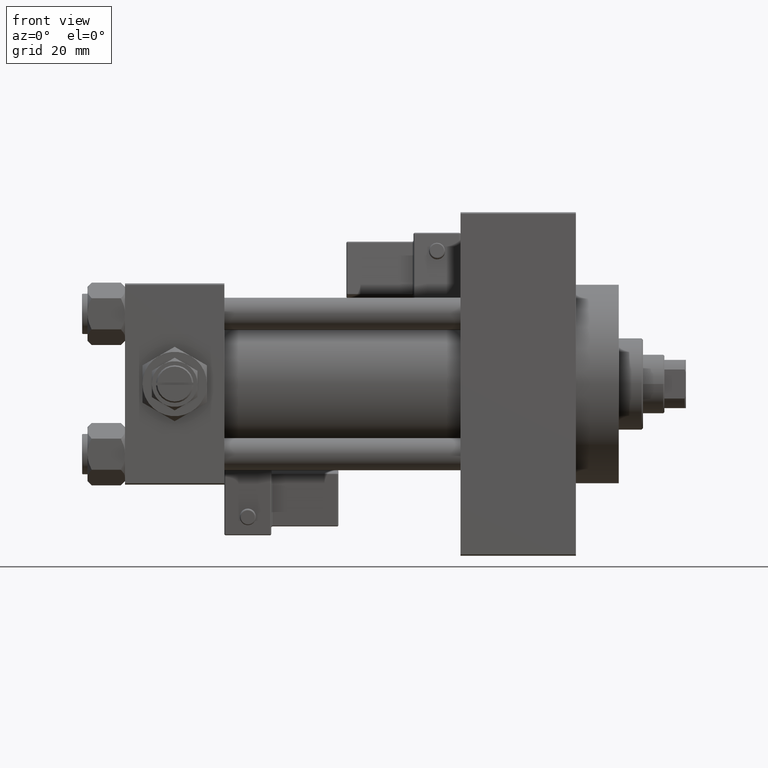
[diagram: clean part render]
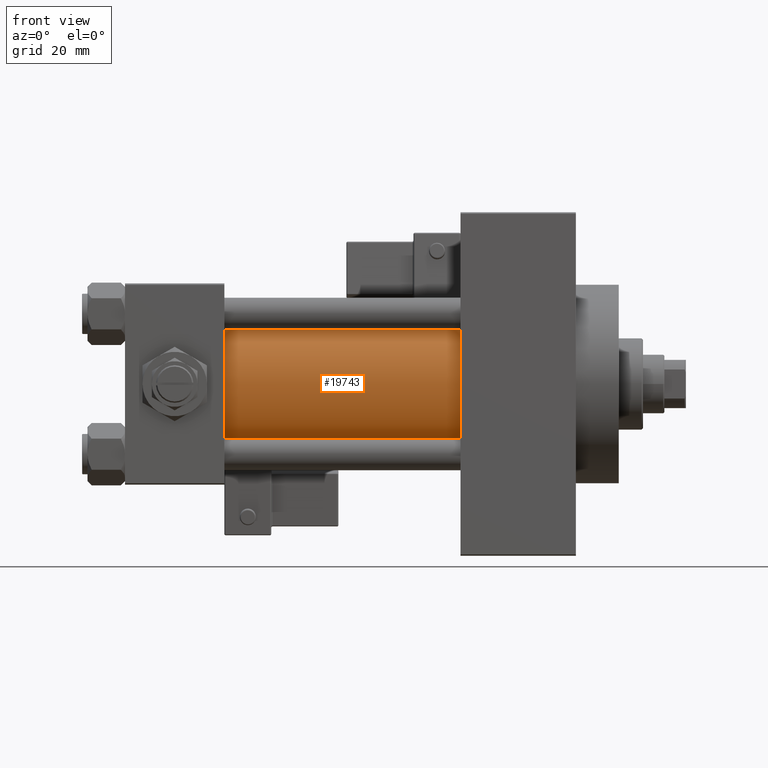
[diagram: same view with one face highlighted and labeled with its STEP entity id]
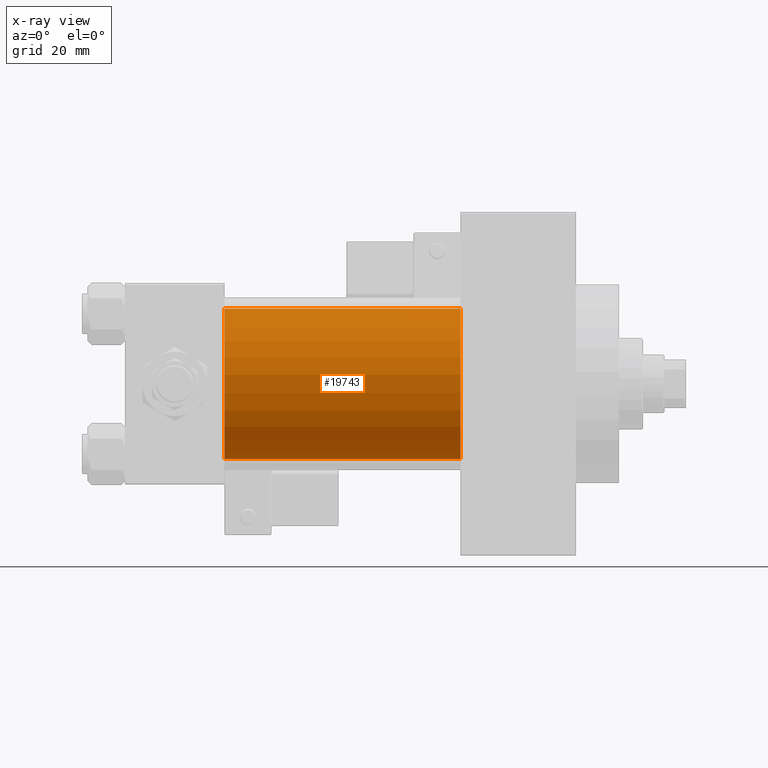
[diagram: x-ray of the same camera — body ghosted, the highlighted face saturated]
A machine part, front view. The second image highlights one B-rep face of the part: STEP entity #19743.
The next image is the same camera in x-ray: the body ghosted, the highlighted face saturated — about 1% of this face is hidden behind the body in this view.
In plain terms, the highlighted cylindrical surface (partial cylindrical patch) has radius 28 mm, axis along (-1, -0, -0).
Its self-contained STEP definition (entity closure, byte-faithful):
#2917 = VERTEX_POINT ( 'NONE', #12791 ) ;
#3509 = EDGE_CURVE ( 'NONE', #2917, #13941, #39879, .T. ) ;
#5780 = DIRECTION ( 'NONE',  ( 0.000000000000000000, 0.000000000000000000, -1.000000000000000000 ) ) ;
#5821 = CARTESIAN_POINT ( 'NONE',  ( 125.0000000000000000, -2.602085213965210642E-15, 0.000000000000000000 ) ) ;
#7447 = CARTESIAN_POINT ( 'NONE',  ( 125.0000000000000000, -2.602085213965210642E-15, 28.00000000000000000 ) ) ;
#8445 = AXIS2_PLACEMENT_3D ( 'NONE', #40764, #29681, #5780 ) ;
#9033 = CARTESIAN_POINT ( 'NONE',  ( 37.00000000000000711, -2.602085213965210642E-15, 28.00000000000000000 ) ) ;
#9466 = CIRCLE ( 'NONE', #15189, 28.00000000000000000 ) ;
#11496 = ORIENTED_EDGE ( 'NONE', *, *, #12840, .F. ) ;
#12791 = CARTESIAN_POINT ( 'NONE',  ( 125.0000000000000000, 8.269258236473784371E-16, -28.00000000000000000 ) ) ;
#12840 = EDGE_CURVE ( 'NONE', #19184, #2917, #21524, .T. ) ;
#13760 = EDGE_CURVE ( 'NONE', #19184, #15417, #25076, .T. ) ;
#13941 = VERTEX_POINT ( 'NONE', #26328 ) ;
#14435 = DIRECTION ( 'NONE',  ( 1.000000000000000000, -0.000000000000000000, 0.000000000000000000 ) ) ;
#14781 = CYLINDRICAL_SURFACE ( 'NONE', #17611, 28.00000000000000000 ) ;
#15189 = AXIS2_PLACEMENT_3D ( 'NONE', #41973, #14435, #29882 ) ;
#15417 = VERTEX_POINT ( 'NONE', #9033 ) ;
#16961 = ORIENTED_EDGE ( 'NONE', *, *, #13760, .T. ) ;
#17611 = AXIS2_PLACEMENT_3D ( 'NONE', #5821, #49518, #22491 ) ;
#19184 = VERTEX_POINT ( 'NONE', #7447 ) ;
#19743 = ADVANCED_FACE ( 'NONE', ( #34336 ), #14781, .T. ) ;
#20971 = CARTESIAN_POINT ( 'NONE',  ( 125.0000000000000000, -2.602085213965210642E-15, 28.00000000000000000 ) ) ;
#21524 = CIRCLE ( 'NONE', #8445, 28.00000000000000000 ) ;
#22147 = EDGE_CURVE ( 'NONE', #15417, #13941, #9466, .T. ) ;
#22491 = DIRECTION ( 'NONE',  ( 0.000000000000000000, 0.000000000000000000, 1.000000000000000000 ) ) ;
#25076 = LINE ( 'NONE', #20971, #46242 ) ;
#26328 = CARTESIAN_POINT ( 'NONE',  ( 37.00000000000000711, 8.269258236473784371E-16, -28.00000000000000000 ) ) ;
#26945 = VECTOR ( 'NONE', #28046, 1000.000000000000000 ) ;
#28046 = DIRECTION ( 'NONE',  ( -1.000000000000000000, -0.000000000000000000, -0.000000000000000000 ) ) ;
#29681 = DIRECTION ( 'NONE',  ( 1.000000000000000000, 0.000000000000000000, 0.000000000000000000 ) ) ;
#29882 = DIRECTION ( 'NONE',  ( 0.000000000000000000, 0.000000000000000000, 1.000000000000000000 ) ) ;
#34336 = FACE_OUTER_BOUND ( 'NONE', #50440, .T. ) ;
#35478 = ORIENTED_EDGE ( 'NONE', *, *, #22147, .T. ) ;
#39879 = LINE ( 'NONE', #43997, #26945 ) ;
#40013 = DIRECTION ( 'NONE',  ( -1.000000000000000000, -0.000000000000000000, -0.000000000000000000 ) ) ;
#40764 = CARTESIAN_POINT ( 'NONE',  ( 125.0000000000000000, -2.602085213965210642E-15, 0.000000000000000000 ) ) ;
#41973 = CARTESIAN_POINT ( 'NONE',  ( 37.00000000000000711, -2.602085213965210642E-15, 0.000000000000000000 ) ) ;
#43332 = ORIENTED_EDGE ( 'NONE', *, *, #3509, .F. ) ;
#43997 = CARTESIAN_POINT ( 'NONE',  ( 125.0000000000000000, 8.269258236473784371E-16, -28.00000000000000000 ) ) ;
#46242 = VECTOR ( 'NONE', #40013, 1000.000000000000000 ) ;
#49518 = DIRECTION ( 'NONE',  ( -1.000000000000000000, -0.000000000000000000, -0.000000000000000000 ) ) ;
#50440 = EDGE_LOOP ( 'NONE', ( #43332, #11496, #16961, #35478 ) ) ;